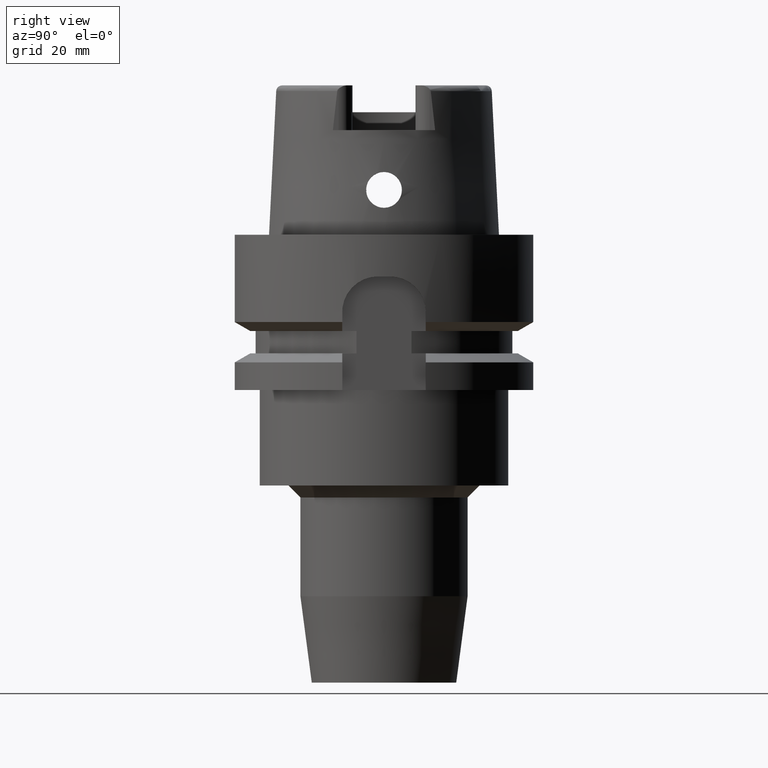
[diagram: clean part render]
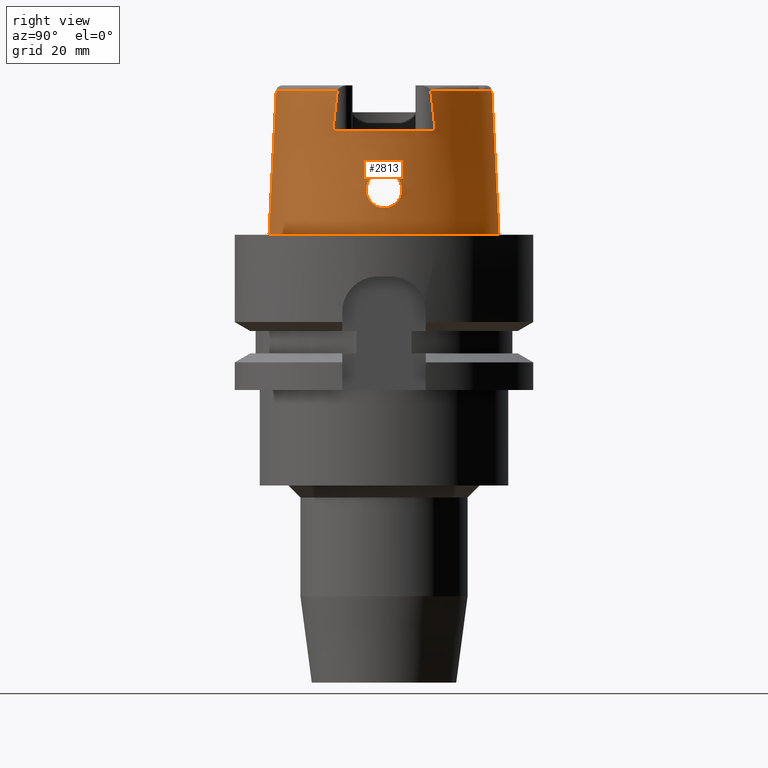
[diagram: same view with one face highlighted and labeled with its STEP entity id]
A machine part, right view. The second image highlights one B-rep face of the part: STEP entity #2813.
In plain terms, the highlighted conical surface has half-angle 2.862 deg.
Its self-contained STEP definition (entity closure, byte-faithful):
#250=CARTESIAN_POINT('',(1.626000240863E1,-7.831001011867E0,2.404998239496E1));
#255=CARTESIAN_POINT('',(0.E0,0.E0,2.404993752584E1));
#256=DIRECTION('',(0.E0,0.E0,-1.E0));
#257=DIRECTION('',(9.009559685362E-1,-4.339105239091E-1,0.E0));
#258=AXIS2_PLACEMENT_3D('',#255,#256,#257);
#289=DIRECTION('',(0.E0,-4.993752584487E-2,-9.987523434328E-1));
#290=VECTOR('',#289,2.407998107236E1);
#291=CARTESIAN_POINT('',(0.E0,-1.804750486565E1,2.404993752584E1));
#292=LINE('',#291,#290);
#344=CARTESIAN_POINT('',(1.625999792225E1,8.558809559570E0,1.75E1));
#345=CARTESIAN_POINT('',(1.625999792225E1,8.480097850170E0,1.823325708259E1));
#346=CARTESIAN_POINT('',(1.625999981681E1,8.321459504121E0,1.969614758862E1));
#347=CARTESIAN_POINT('',(1.626000375779E1,8.078776164253E0,2.187941083013E1));
#348=CARTESIAN_POINT('',(1.625999135394E1,7.914273181137E0,2.332776383513E1));
#349=CARTESIAN_POINT('',(1.625999135394E1,7.831075746968E0,2.404977634931E1));
#354=DIRECTION('',(0.E0,4.993752584487E-2,-9.987523434328E-1));
#355=VECTOR('',#354,2.407998107236E1);
#356=CARTESIAN_POINT('',(0.E0,1.804750486565E1,2.404993752584E1));
#357=LINE('',#356,#355);
#361=CARTESIAN_POINT('',(1.626000240863E1,-7.831001011867E0,2.404998239496E1));
#362=CARTESIAN_POINT('',(1.626000240863E1,-7.914223176791E0,2.332776161049E1));
#363=CARTESIAN_POINT('',(1.626000011532E1,-8.078847146948E0,2.187971684142E1));
#364=CARTESIAN_POINT('',(1.625999598344E1,-8.321539115639E0,1.969639162419E1));
#365=CARTESIAN_POINT('',(1.626000929510E1,-8.480037106998E0,1.823335843826E1));
#366=CARTESIAN_POINT('',(1.626000929510E1,-8.558760292650E0,1.75E1));
#371=CARTESIAN_POINT('',(1.872500050292E1,-7.067677425114E-14,1.05E1));
#372=CARTESIAN_POINT('',(1.872500050292E1,-2.617743636115E-1,1.05E1));
#373=CARTESIAN_POINT('',(1.871721524799E1,-7.857348357673E-1,1.043105048723E1));
#374=CARTESIAN_POINT('',(1.868622447043E1,-1.519110608484E0,1.012715688939E1));
#375=CARTESIAN_POINT('',(1.864718201016E1,-2.149747755602E0,9.641888222395E0));
#376=CARTESIAN_POINT('',(1.861573426612E1,-2.630901084676E0,9.012096655318E0));
#377=CARTESIAN_POINT('',(1.860668530540E1,-2.931987103231E0,8.280421256959E0));
#378=CARTESIAN_POINT('',(1.862939493266E1,-3.033788282721E0,7.502612502253E0));
#379=CARTESIAN_POINT('',(1.868548564946E1,-2.932855363527E0,6.721717808604E0));
#380=CARTESIAN_POINT('',(1.876845286763E1,-2.631148288077E0,5.988100502151E0));
#381=CARTESIAN_POINT('',(1.886301583216E1,-2.148772074920E0,5.356717519939E0));
#382=CARTESIAN_POINT('',(1.895031661318E1,-1.514546365313E0,4.869981256848E0));
#383=CARTESIAN_POINT('',(1.901072852574E1,-7.808783140726E-1,4.567883534604E0));
#384=CARTESIAN_POINT('',(1.902499995428E1,-2.597111400904E-1,4.5E0));
#385=CARTESIAN_POINT('',(1.902499995428E1,0.E0,4.5E0));
#390=CARTESIAN_POINT('',(1.902499995428E1,0.E0,4.5E0));
#391=CARTESIAN_POINT('',(1.902499995428E1,2.594863557518E-1,4.5E0));
#392=CARTESIAN_POINT('',(1.901071475246E1,7.788162031880E-1,4.567980358087E0));
#393=CARTESIAN_POINT('',(1.895136157159E1,1.503607894692E0,4.864722269548E0));
#394=CARTESIAN_POINT('',(1.886523663502E1,2.135219903883E0,5.343592349718E0));
#395=CARTESIAN_POINT('',(1.877048090339E1,2.622661681784E0,5.972502201518E0));
#396=CARTESIAN_POINT('',(1.868624392274E1,2.931195531998E0,6.712238648146E0));
#397=CARTESIAN_POINT('',(1.862931733611E1,3.034439584181E0,7.501992160651E0));
#398=CARTESIAN_POINT('',(1.860662970707E1,2.931045482995E0,8.284623662691E0));
#399=CARTESIAN_POINT('',(1.861586509264E1,2.628995602407E0,9.014700718439E0));
#400=CARTESIAN_POINT('',(1.864710120376E1,2.150858424345E0,9.640222078841E0));
#401=CARTESIAN_POINT('',(1.868603581068E1,1.522578088313E0,1.012518993953E1));
#402=CARTESIAN_POINT('',(1.871717109521E1,7.878628729778E-1,1.043067675602E1));
#403=CARTESIAN_POINT('',(1.872500050292E1,2.626284102572E-1,1.05E1));
#404=CARTESIAN_POINT('',(1.872500050292E1,-7.067677425114E-14,1.05E1));
#439=CARTESIAN_POINT('',(0.E0,0.E0,1.75E1));
#440=DIRECTION('',(0.E0,0.E0,-1.E0));
#441=DIRECTION('',(8.848979041389E-1,4.657850354515E-1,0.E0));
#442=AXIS2_PLACEMENT_3D('',#439,#440,#441);
#1942=CARTESIAN_POINT('',(0.E0,0.E0,-4.547473508865E-13));
#1943=DIRECTION('',(0.E0,0.E0,1.E0));
#1944=DIRECTION('',(0.E0,-1.E0,0.E0));
#1945=AXIS2_PLACEMENT_3D('',#1942,#1943,#1944);
#2204=CARTESIAN_POINT('',(0.E0,0.E0,2.404993752584E1));
#2205=DIRECTION('',(0.E0,0.E0,-1.E0));
#2206=DIRECTION('',(0.E0,1.E0,0.E0));
#2207=AXIS2_PLACEMENT_3D('',#2204,#2205,#2206);
#2212=CARTESIAN_POINT('',(0.E0,0.E0,2.404993752584E1));
#2213=DIRECTION('',(0.E0,0.E0,-1.E0));
#2214=DIRECTION('',(8.255998758101E-4,9.999996591924E-1,0.E0));
#2215=AXIS2_PLACEMENT_3D('',#2212,#2213,#2214);
#2309=CARTESIAN_POINT('',(0.E0,1.804750486565E1,2.404993752584E1));
#2310=VERTEX_POINT('',#2309);
#2311=CARTESIAN_POINT('',(1.490001777577E-2,1.804749871493E1,2.404993752584E1));
#2312=CARTESIAN_POINT('',(1.625997406183E1,7.831071151783E0,2.404993752584E1));
#2313=VERTEX_POINT('',#2311);
#2314=VERTEX_POINT('',#2312);
#2318=VERTEX_POINT('',#250);
#2319=CARTESIAN_POINT('',(0.E0,-1.804750486565E1,2.404993752584E1));
#2320=VERTEX_POINT('',#2319);
#2323=CARTESIAN_POINT('',(0.E0,-1.924999954279E1,-4.547473508865E-13));
#2324=VERTEX_POINT('',#2323);
#2325=CARTESIAN_POINT('',(0.E0,1.924999954279E1,-4.547473508865E-13));
#2326=VERTEX_POINT('',#2325);
#2329=CARTESIAN_POINT('',(1.626E1,8.558800558816E0,1.75E1));
#2330=CARTESIAN_POINT('',(1.626E1,-8.558800558816E0,1.75E1));
#2331=VERTEX_POINT('',#2329);
#2332=VERTEX_POINT('',#2330);
#2333=VERTEX_POINT('',#371);
#2334=VERTEX_POINT('',#385);
#2785=CARTESIAN_POINT('',(0.E0,0.E0,1.202496876292E1));
#2786=DIRECTION('',(0.E0,0.E0,-1.E0));
#2787=DIRECTION('',(0.E0,-1.E0,0.E0));
#2788=AXIS2_PLACEMENT_3D('',#2785,#2786,#2787);
#2789=CONICAL_SURFACE('',#2788,1.864875220422E1,2.8624E0);
#2791=ORIENTED_EDGE('',*,*,#2790,.F.);
#2793=ORIENTED_EDGE('',*,*,#2792,.T.);
#2795=ORIENTED_EDGE('',*,*,#2794,.F.);
#2797=ORIENTED_EDGE('',*,*,#2796,.F.);
#2798=ORIENTED_EDGE('',*,*,#2770,.T.);
#2800=ORIENTED_EDGE('',*,*,#2799,.F.);
#2801=ORIENTED_EDGE('',*,*,#2766,.F.);
#2802=ORIENTED_EDGE('',*,*,#2735,.F.);
#2804=ORIENTED_EDGE('',*,*,#2803,.T.);
#2805=EDGE_LOOP('',(#2791,#2793,#2795,#2797,#2798,#2800,#2801,#2802,#2804));
#2806=FACE_OUTER_BOUND('',#2805,.F.);
#2808=ORIENTED_EDGE('',*,*,#2807,.T.);
#2810=ORIENTED_EDGE('',*,*,#2809,.T.);
#2811=EDGE_LOOP('',(#2808,#2810));
#2812=FACE_BOUND('',#2811,.F.);
#259=CIRCLE('',#258,1.804750486565E1);
#350=B_SPLINE_CURVE_WITH_KNOTS('',3,(#344,#345,#346,#347,#348,#349),
.UNSPECIFIED.,.F.,.F.,(4,1,1,4),(0.E0,3.333333333333E-1,6.666666666667E-1,1.E0),
.UNSPECIFIED.);
#367=B_SPLINE_CURVE_WITH_KNOTS('',3,(#361,#362,#363,#364,#365,#366),
.UNSPECIFIED.,.F.,.F.,(4,1,1,4),(0.E0,3.333333333333E-1,6.666666666667E-1,1.E0),
.UNSPECIFIED.);
#386=B_SPLINE_CURVE_WITH_KNOTS('',3,(#371,#372,#373,#374,#375,#376,#377,#378,
#379,#380,#381,#382,#383,#384,#385),.UNSPECIFIED.,.F.,.F.,(4,1,1,1,1,1,1,1,1,1,
1,1,4),(0.E0,8.333333333333E-2,1.666666666667E-1,2.5E-1,3.333333333333E-1,
4.166666666667E-1,5.E-1,5.833333333333E-1,6.666666666667E-1,7.5E-1,
8.333333333333E-1,9.166666666667E-1,1.E0),.UNSPECIFIED.);
#405=B_SPLINE_CURVE_WITH_KNOTS('',3,(#390,#391,#392,#393,#394,#395,#396,#397,
#398,#399,#400,#401,#402,#403,#404),.UNSPECIFIED.,.F.,.F.,(4,1,1,1,1,1,1,1,1,1,
1,1,4),(0.E0,8.333333333333E-2,1.666666666667E-1,2.5E-1,3.333333333333E-1,
4.166666666667E-1,5.E-1,5.833333333333E-1,6.666666666667E-1,7.5E-1,
8.333333333333E-1,9.166666666667E-1,1.E0),.UNSPECIFIED.);
#443=CIRCLE('',#442,1.837500114301E1);
#1946=CIRCLE('',#1945,1.924999954279E1);
#2208=CIRCLE('',#2207,1.804750486565E1);
#2216=CIRCLE('',#2215,1.804750486565E1);
#2735=EDGE_CURVE('',#2318,#2320,#259,.T.);
#2766=EDGE_CURVE('',#2320,#2324,#292,.T.);
#2770=EDGE_CURVE('',#2310,#2326,#357,.T.);
#2790=EDGE_CURVE('',#2331,#2332,#443,.T.);
#2792=EDGE_CURVE('',#2331,#2314,#350,.T.);
#2794=EDGE_CURVE('',#2313,#2314,#2216,.T.);
#2796=EDGE_CURVE('',#2310,#2313,#2208,.T.);
#2799=EDGE_CURVE('',#2324,#2326,#1946,.T.);
#2803=EDGE_CURVE('',#2318,#2332,#367,.T.);
#2807=EDGE_CURVE('',#2333,#2334,#386,.T.);
#2809=EDGE_CURVE('',#2334,#2333,#405,.T.);
#2813=ADVANCED_FACE('',(#2806,#2812),#2789,.T.);